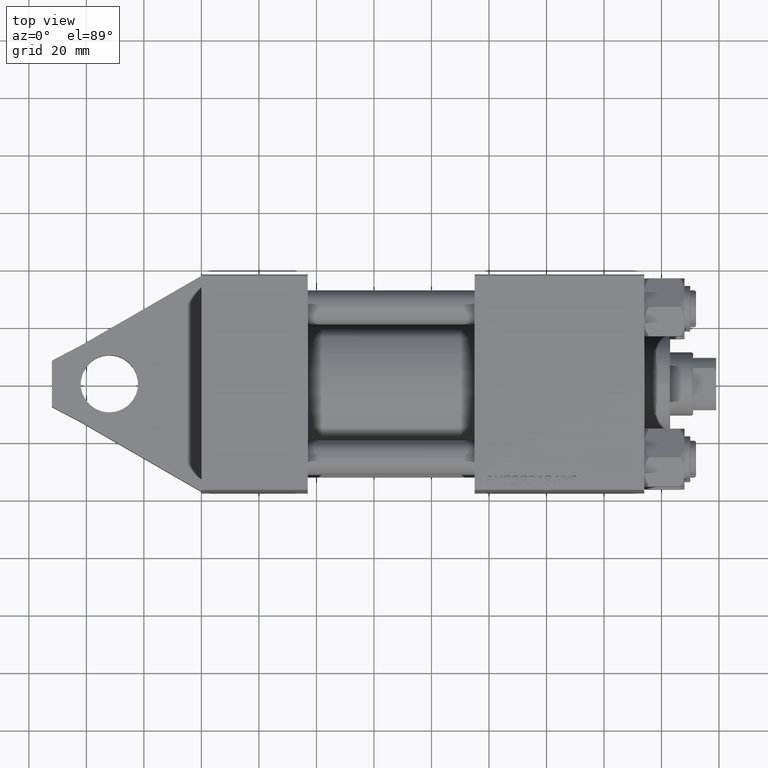
[diagram: clean part render]
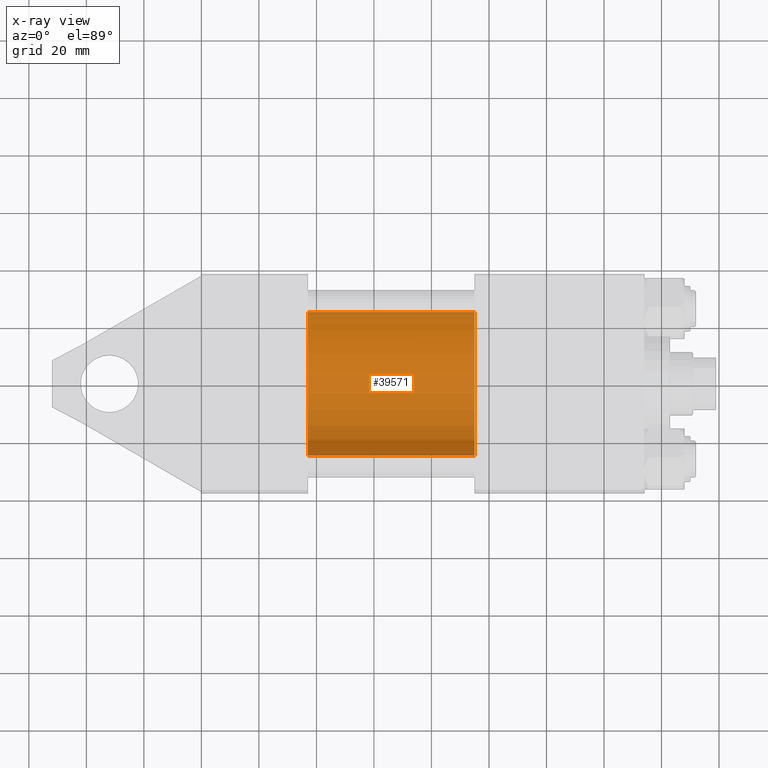
[diagram: x-ray — body ghosted, one internal face saturated and labeled with its STEP entity id]
A machine part, top view, then the same camera in x-ray: the body is ghosted and one INTERNAL B-rep face — a face not visible from any outside direction — is saturated and labeled: STEP entity #39571.
In plain terms, the highlighted cylindrical surface (partial cylindrical patch) has radius 25 mm, axis along (-1, -0, 0).
Its self-contained STEP definition (entity closure, byte-faithful):
#643 = VERTEX_POINT ( 'NONE', #36976 ) ;
#1192 = DIRECTION ( 'NONE',  ( -1.000000000000000000, -0.000000000000000000, -0.000000000000000000 ) ) ;
#1333 = CARTESIAN_POINT ( 'NONE',  ( 95.00000000000000000, 4.595317839031718093E-16, -25.00000000000000000 ) ) ;
#1786 = DIRECTION ( 'NONE',  ( 0.000000000000000000, 0.000000000000000000, -1.000000000000000000 ) ) ;
#3199 = CYLINDRICAL_SURFACE ( 'NONE', #41403, 25.00000000000000000 ) ;
#8146 = VERTEX_POINT ( 'NONE', #22698 ) ;
#8546 = CARTESIAN_POINT ( 'NONE',  ( 37.00000000000000000, -2.602085213965210642E-15, 0.000000000000000000 ) ) ;
#10840 = CIRCLE ( 'NONE', #31632, 25.00000000000000000 ) ;
#13358 = VERTEX_POINT ( 'NONE', #26574 ) ;
#13445 = CARTESIAN_POINT ( 'NONE',  ( 95.00000000000000000, -2.602085213965210642E-15, 0.000000000000000000 ) ) ;
#16255 = EDGE_CURVE ( 'NONE', #13358, #8146, #39500, .T. ) ;
#16819 = EDGE_CURVE ( 'NONE', #13358, #27548, #32150, .T. ) ;
#17618 = FACE_OUTER_BOUND ( 'NONE', #35251, .T. ) ;
#19239 = DIRECTION ( 'NONE',  ( -1.000000000000000000, -0.000000000000000000, -0.000000000000000000 ) ) ;
#22698 = CARTESIAN_POINT ( 'NONE',  ( 95.00000000000000000, 4.595317839031718093E-16, -25.00000000000000000 ) ) ;
#23169 = DIRECTION ( 'NONE',  ( 1.000000000000000000, 0.000000000000000000, 0.000000000000000000 ) ) ;
#25082 = DIRECTION ( 'NONE',  ( -1.000000000000000000, -0.000000000000000000, -0.000000000000000000 ) ) ;
#25498 = ORIENTED_EDGE ( 'NONE', *, *, #16255, .T. ) ;
#25801 = CARTESIAN_POINT ( 'NONE',  ( 95.00000000000000000, -2.602085213965210642E-15, 0.000000000000000000 ) ) ;
#26574 = CARTESIAN_POINT ( 'NONE',  ( 95.00000000000000000, -2.602085213965210642E-15, 25.00000000000000000 ) ) ;
#27548 = VERTEX_POINT ( 'NONE', #37775 ) ;
#30177 = DIRECTION ( 'NONE',  ( 1.000000000000000000, 0.000000000000000000, 0.000000000000000000 ) ) ;
#30710 = EDGE_CURVE ( 'NONE', #27548, #643, #10840, .T. ) ;
#31632 = AXIS2_PLACEMENT_3D ( 'NONE', #8546, #30177, #1786 ) ;
#31827 = DIRECTION ( 'NONE',  ( 0.000000000000000000, 0.000000000000000000, 1.000000000000000000 ) ) ;
#32150 = LINE ( 'NONE', #39367, #34950 ) ;
#34950 = VECTOR ( 'NONE', #1192, 1000.000000000000000 ) ;
#35251 = EDGE_LOOP ( 'NONE', ( #25498, #42128, #43392, #36624 ) ) ;
#35545 = VECTOR ( 'NONE', #19239, 1000.000000000000000 ) ;
#36624 = ORIENTED_EDGE ( 'NONE', *, *, #16819, .F. ) ;
#36705 = LINE ( 'NONE', #1333, #35545 ) ;
#36976 = CARTESIAN_POINT ( 'NONE',  ( 37.00000000000000000, 4.595317839031718093E-16, -25.00000000000000000 ) ) ;
#37775 = CARTESIAN_POINT ( 'NONE',  ( 37.00000000000000000, -2.602085213965210642E-15, 25.00000000000000000 ) ) ;
#39367 = CARTESIAN_POINT ( 'NONE',  ( 95.00000000000000000, -2.602085213965210642E-15, 25.00000000000000000 ) ) ;
#39500 = CIRCLE ( 'NONE', #41722, 25.00000000000000000 ) ;
#39571 = ADVANCED_FACE ( 'NONE', ( #17618 ), #3199, .F. ) ;
#39989 = DIRECTION ( 'NONE',  ( 0.000000000000000000, 0.000000000000000000, -1.000000000000000000 ) ) ;
#41403 = AXIS2_PLACEMENT_3D ( 'NONE', #13445, #25082, #31827 ) ;
#41722 = AXIS2_PLACEMENT_3D ( 'NONE', #25801, #23169, #39989 ) ;
#42128 = ORIENTED_EDGE ( 'NONE', *, *, #43956, .T. ) ;
#43392 = ORIENTED_EDGE ( 'NONE', *, *, #30710, .F. ) ;
#43956 = EDGE_CURVE ( 'NONE', #8146, #643, #36705, .T. ) ;